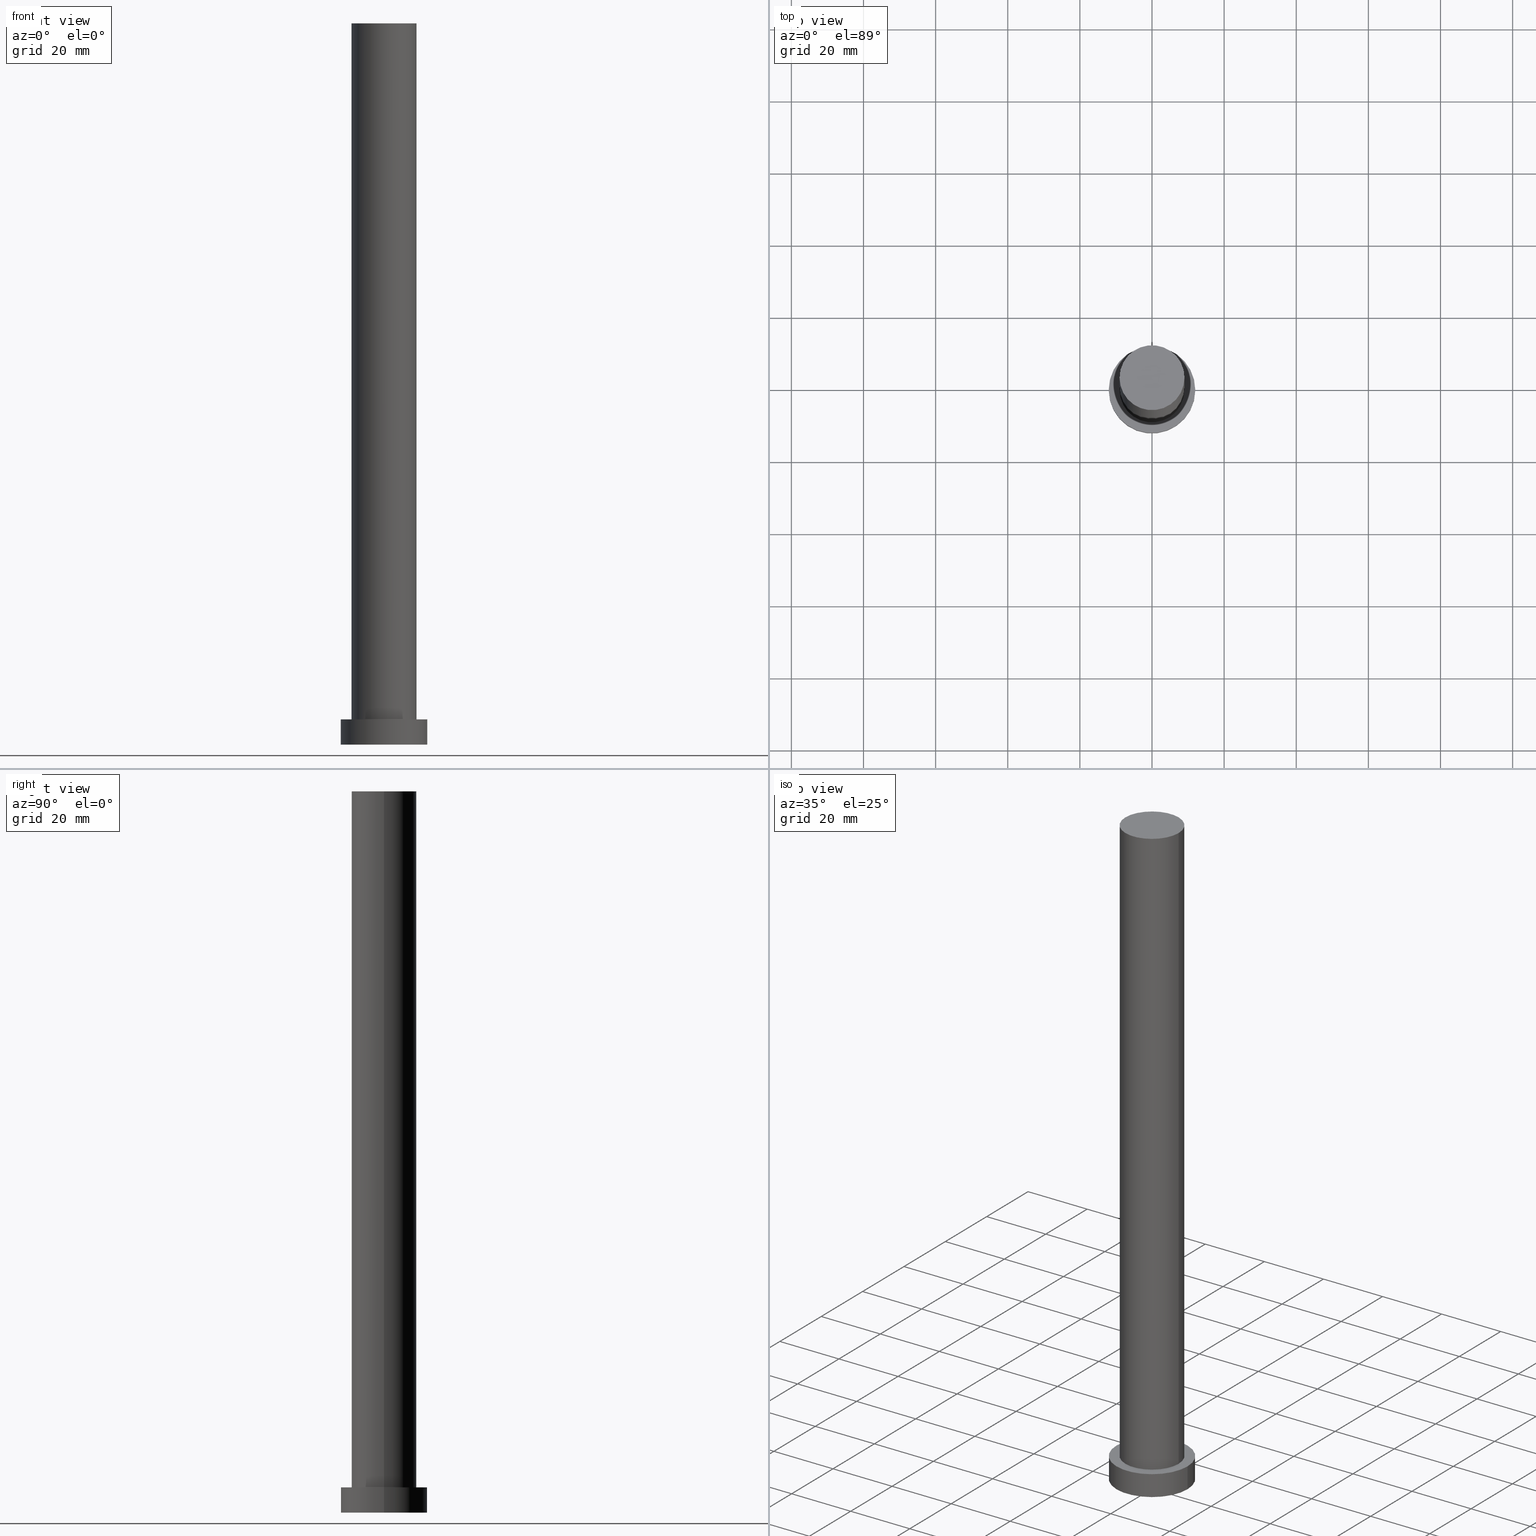
[diagram: canonical four-view strip — front | top / right | iso, engineering-drawing reading convention]
A machine part, canonical four-view strip (front | top / right | iso — engineering-drawing reading convention). The complete STEP part file that produces these views, byte-faithful:
ISO-10303-21;
HEADER;
FILE_DESCRIPTION (( 'STEP AP203' ),
    '1' );
FILE_NAME ('eaf8.STEP',
    '2023-02-12T10:38:04',
    ( '' ),
    ( '' ),
    'SwSTEP 2.0',
    'SolidWorks 2019',
    '' );
FILE_SCHEMA (( 'CONFIG_CONTROL_DESIGN' ));
ENDSEC;

DATA;
#1 = DIRECTION ( 'NONE',  ( 1.000000000000000000, 0.000000000000000000, 0.000000000000000000 ) ) ;
#2 = EDGE_CURVE ( 'NONE', #90, #34, #212, .T. ) ;
#3 = VERTEX_POINT ( 'NONE', #85 ) ;
#4 = VECTOR ( 'NONE', #125, 1000.000000000000000 ) ;
#5 = FACE_BOUND ( 'NONE', #245, .T. ) ;
#6 = CC_DESIGN_PERSON_AND_ORGANIZATION_ASSIGNMENT ( #117, #144, ( #162 ) ) ;
#7 = CARTESIAN_POINT ( 'NONE',  ( -12.00000000000000178, 0.000000000000000000, 7.000000000000000000 ) ) ;
#8 = EDGE_CURVE ( 'NONE', #3, #243, #59, .T. ) ;
#9 = CARTESIAN_POINT ( 'NONE',  ( 0.000000000000000000, 0.000000000000000000, 0.000000000000000000 ) ) ;
#10 = LOCAL_TIME ( 11, 38, 4.000000000000000000, #32 ) ;
#11 = DIRECTION ( 'NONE',  ( 1.000000000000000000, 0.000000000000000000, -0.000000000000000000 ) ) ;
#12 = ORIENTED_EDGE ( 'NONE', *, *, #150, .T. ) ;
#13 = ADVANCED_FACE ( 'NONE', ( #5, #238 ), #216, .T. ) ;
#14 = PERSON_AND_ORGANIZATION ( #47, #176 ) ;
#15 = APPROVAL_ROLE ( '' ) ;
#16 = EDGE_LOOP ( 'NONE', ( #31, #163, #40, #51 ) ) ;
#17 = SHAPE_DEFINITION_REPRESENTATION ( #251, #180 ) ;
#18 = VERTEX_POINT ( 'NONE', #38 ) ;
#19 = VECTOR ( 'NONE', #138, 1000.000000000000000 ) ;
#20 = APPROVAL ( #255, 'NEUR�EN�' ) ;
#21 = APPROVAL_PERSON_ORGANIZATION ( #254, #20, #98 ) ;
#22 = DIRECTION ( 'NONE',  ( 1.000000000000000000, 0.000000000000000000, 0.000000000000000000 ) ) ;
#23 = DIRECTION ( 'NONE',  ( -1.000000000000000000, 0.000000000000000000, 0.000000000000000000 ) ) ;
#24 = AXIS2_PLACEMENT_3D ( 'NONE', #128, #224, #109 ) ;
#25 = CARTESIAN_POINT ( 'NONE',  ( 0.000000000000000000, 0.000000000000000000, 0.000000000000000000 ) ) ;
#26 = MECHANICAL_CONTEXT ( 'NONE', #61, 'mechanical' ) ;
#27 = DIRECTION ( 'NONE',  ( 0.000000000000000000, 0.000000000000000000, 1.000000000000000000 ) ) ;
#28 = AXIS2_PLACEMENT_3D ( 'NONE', #233, #156, #172 ) ;
#29 = PLANE ( 'NONE',  #149 ) ;
#30 = CC_DESIGN_APPROVAL ( #82, ( #121 ) ) ;
#31 = ORIENTED_EDGE ( 'NONE', *, *, #2, .F. ) ;
#32 = COORDINATED_UNIVERSAL_TIME_OFFSET ( 1, 0, .AHEAD. ) ;
#33 = CIRCLE ( 'NONE', #205, 12.00000000000000178 ) ;
#34 = VERTEX_POINT ( 'NONE', #239 ) ;
#35 = AXIS2_PLACEMENT_3D ( 'NONE', #9, #27, #201 ) ;
#36 = ORIENTED_EDGE ( 'NONE', *, *, #8, .T. ) ;
#37 = APPROVAL_DATE_TIME ( #193, #208 ) ;
#38 = CARTESIAN_POINT ( 'NONE',  ( -12.00000000000000178, 0.000000000000000000, 0.000000000000000000 ) ) ;
#39 = APPROVAL_ROLE ( '' ) ;
#40 = ORIENTED_EDGE ( 'NONE', *, *, #111, .T. ) ;
#41 = PERSON_AND_ORGANIZATION_ROLE ( 'classification_officer' ) ;
#42 = CARTESIAN_POINT ( 'NONE',  ( 9.000000000000001776, 1.102182119232617911E-15, 200.0000000000000000 ) ) ;
#43 = CIRCLE ( 'NONE', #66, 9.000000000000001776 ) ;
#44 = CARTESIAN_POINT ( 'NONE',  ( 0.000000000000000000, 0.000000000000000000, 200.0000000000000000 ) ) ;
#45 = DIRECTION ( 'NONE',  ( 1.000000000000000000, 0.000000000000000000, 0.000000000000000000 ) ) ;
#46 = FACE_OUTER_BOUND ( 'NONE', #73, .T. ) ;
#47 = PERSON ( 'NEUR�EN�', 'NEUR�EN�', 'NEUR�EN�', ('NEUR�EN�'), ('NEUR�EN�'), ('NEUR�EN�') ) ;
#48 = CARTESIAN_POINT ( 'NONE',  ( 0.000000000000000000, 0.000000000000000000, 200.0000000000000000 ) ) ;
#49 = EDGE_CURVE ( 'NONE', #3, #77, #83, .T. ) ;
#50 = CARTESIAN_POINT ( 'NONE',  ( 0.000000000000000000, 0.000000000000000000, 200.0000000000000000 ) ) ;
#51 = ORIENTED_EDGE ( 'NONE', *, *, #127, .F. ) ;
#52 = PERSON_AND_ORGANIZATION ( #47, #176 ) ;
#53 = DATE_AND_TIME ( #134, #79 ) ;
#54 = CLOSED_SHELL ( 'NONE', ( #146, #242, #67, #13, #221, #91, #196 ) ) ;
#55 = ORIENTED_EDGE ( 'NONE', *, *, #49, .T. ) ;
#56 = DATE_AND_TIME ( #213, #231 ) ;
#57 = CALENDAR_DATE ( 2023, 12, 2 ) ;
#58 = DIRECTION ( 'NONE',  ( 0.000000000000000000, 0.000000000000000000, 1.000000000000000000 ) ) ;
#59 = CIRCLE ( 'NONE', #103, 12.00000000000000178 ) ;
#60 = AXIS2_PLACEMENT_3D ( 'NONE', #140, #100, #96 ) ;
#61 = APPLICATION_CONTEXT ( 'configuration controlled 3d designs of mechanical parts and assemblies' ) ;
#62 = CARTESIAN_POINT ( 'NONE',  ( 9.000000000000001776, 1.102182119232617911E-15, 200.0000000000000000 ) ) ;
#63 = APPROVAL_PERSON_ORGANIZATION ( #248, #208, #15 ) ;
#64 = DIRECTION ( 'NONE',  ( 0.000000000000000000, 0.000000000000000000, 1.000000000000000000 ) ) ;
#65 = VERTEX_POINT ( 'NONE', #116 ) ;
#66 = AXIS2_PLACEMENT_3D ( 'NONE', #48, #108, #141 ) ;
#67 = ADVANCED_FACE ( 'NONE', ( #135 ), #177, .T. ) ;
#68 = DIRECTION ( 'NONE',  ( 1.000000000000000000, 0.000000000000000000, -0.000000000000000000 ) ) ;
#69 = FACE_OUTER_BOUND ( 'NONE', #16, .T. ) ;
#70 = ORIENTED_EDGE ( 'NONE', *, *, #2, .T. ) ;
#71 = DIRECTION ( 'NONE',  ( -1.000000000000000000, 0.000000000000000000, 0.000000000000000000 ) ) ;
#72 = EDGE_CURVE ( 'NONE', #65, #206, #153, .T. ) ;
#73 = EDGE_LOOP ( 'NONE', ( #166, #70 ) ) ;
#74 = CYLINDRICAL_SURFACE ( 'NONE', #124, 12.00000000000000178 ) ;
#75 = ORIENTED_EDGE ( 'NONE', *, *, #127, .T. ) ;
#76 = COORDINATED_UNIVERSAL_TIME_OFFSET ( 1, 0, .AHEAD. ) ;
#77 = VERTEX_POINT ( 'NONE', #155 ) ;
#78 = DATE_AND_TIME ( #57, #173 ) ;
#79 = LOCAL_TIME ( 11, 38, 4.000000000000000000, #76 ) ;
#80 = CARTESIAN_POINT ( 'NONE',  ( 0.000000000000000000, 0.000000000000000000, 7.000000000000000000 ) ) ;
#81 = EDGE_CURVE ( 'NONE', #243, #3, #33, .T. ) ;
#82 = APPROVAL ( #167, 'NEUR�EN�' ) ;
#83 = LINE ( 'NONE', #157, #192 ) ;
#84 = AXIS2_PLACEMENT_3D ( 'NONE', #120, #198, #23 ) ;
#85 = CARTESIAN_POINT ( 'NONE',  ( 12.00000000000000178, 1.469576158976824144E-15, 7.000000000000000000 ) ) ;
#86 = CARTESIAN_POINT ( 'NONE',  ( 0.000000000000000000, 0.000000000000000000, 7.000000000000000000 ) ) ;
#87 =( NAMED_UNIT ( * ) SI_UNIT ( $, .STERADIAN. ) SOLID_ANGLE_UNIT ( ) );
#88 = VECTOR ( 'NONE', #126, 1000.000000000000000 ) ;
#89 =( LENGTH_UNIT ( ) NAMED_UNIT ( * ) SI_UNIT ( .MILLI., .METRE. ) );
#90 = VERTEX_POINT ( 'NONE', #42 ) ;
#91 = ADVANCED_FACE ( 'NONE', ( #123 ), #104, .T. ) ;
#92 = CARTESIAN_POINT ( 'NONE',  ( 9.000000000000001776, 1.102182119232617911E-15, 7.000000000000000000 ) ) ;
#93 = CIRCLE ( 'NONE', #35, 12.00000000000000178 ) ;
#94 = APPROVAL_DATE_TIME ( #207, #82 ) ;
#95 = ORIENTED_EDGE ( 'NONE', *, *, #150, .F. ) ;
#96 = DIRECTION ( 'NONE',  ( 1.000000000000000000, 0.000000000000000000, -0.000000000000000000 ) ) ;
#97 = CC_DESIGN_APPROVAL ( #20, ( #162 ) ) ;
#98 = APPROVAL_ROLE ( '' ) ;
#99 = CC_DESIGN_PERSON_AND_ORGANIZATION_ASSIGNMENT ( #222, #174, ( #202 ) ) ;
#100 = DIRECTION ( 'NONE',  ( 0.000000000000000000, 0.000000000000000000, 1.000000000000000000 ) ) ;
#101 = CIRCLE ( 'NONE', #24, 12.00000000000000178 ) ;
#102 = CARTESIAN_POINT ( 'NONE',  ( -9.000000000000001776, 0.000000000000000000, 200.0000000000000000 ) ) ;
#103 = AXIS2_PLACEMENT_3D ( 'NONE', #86, #219, #118 ) ;
#104 = CYLINDRICAL_SURFACE ( 'NONE', #84, 9.000000000000001776 ) ;
#105 = DIRECTION ( 'NONE',  ( 0.000000000000000000, 0.000000000000000000, 1.000000000000000000 ) ) ;
#106 = CC_DESIGN_PERSON_AND_ORGANIZATION_ASSIGNMENT ( #194, #232, ( #121 ) ) ;
#107 = DESIGN_CONTEXT ( 'detailed design', #182, 'design' ) ;
#108 = DIRECTION ( 'NONE',  ( 0.000000000000000000, 0.000000000000000000, 1.000000000000000000 ) ) ;
#109 = DIRECTION ( 'NONE',  ( 1.000000000000000000, 0.000000000000000000, 0.000000000000000000 ) ) ;
#110 = LOCAL_TIME ( 11, 38, 4.000000000000000000, #190 ) ;
#111 = EDGE_CURVE ( 'NONE', #206, #65, #130, .T. ) ;
#112 = DIRECTION ( 'NONE',  ( -0.000000000000000000, -0.000000000000000000, -1.000000000000000000 ) ) ;
#113 = ORIENTED_EDGE ( 'NONE', *, *, #81, .T. ) ;
#114 = EDGE_CURVE ( 'NONE', #90, #206, #236, .T. ) ;
#115 = SECURITY_CLASSIFICATION_LEVEL ( 'unclassified' ) ;
#116 = CARTESIAN_POINT ( 'NONE',  ( -9.000000000000001776, 0.000000000000000000, 7.000000000000000000 ) ) ;
#117 = PERSON_AND_ORGANIZATION ( #47, #176 ) ;
#118 = DIRECTION ( 'NONE',  ( 1.000000000000000000, 0.000000000000000000, 0.000000000000000000 ) ) ;
#119 = COORDINATED_UNIVERSAL_TIME_OFFSET ( 1, 0, .AHEAD. ) ;
#120 = CARTESIAN_POINT ( 'NONE',  ( 0.000000000000000000, 0.000000000000000000, 200.0000000000000000 ) ) ;
#121 = PRODUCT_DEFINITION_FORMATION_WITH_SPECIFIED_SOURCE ( 'LIBOVOLN�', '', #202, .NOT_KNOWN. ) ;
#122 = DIRECTION ( 'NONE',  ( 0.000000000000000000, 0.000000000000000000, 1.000000000000000000 ) ) ;
#123 = FACE_OUTER_BOUND ( 'NONE', #249, .T. ) ;
#124 = AXIS2_PLACEMENT_3D ( 'NONE', #160, #112, #71 ) ;
#125 = DIRECTION ( 'NONE',  ( -0.000000000000000000, -0.000000000000000000, -1.000000000000000000 ) ) ;
#126 = DIRECTION ( 'NONE',  ( -0.000000000000000000, -0.000000000000000000, -1.000000000000000000 ) ) ;
#127 = EDGE_CURVE ( 'NONE', #34, #65, #197, .T. ) ;
#128 = CARTESIAN_POINT ( 'NONE',  ( 0.000000000000000000, 0.000000000000000000, 0.000000000000000000 ) ) ;
#129 = PERSON_AND_ORGANIZATION_ROLE ( 'design_supplier' ) ;
#130 = CIRCLE ( 'NONE', #235, 9.000000000000001776 ) ;
#131 = DATE_TIME_ROLE ( 'classification_date' ) ;
#132 = ORIENTED_EDGE ( 'NONE', *, *, #81, .F. ) ;
#133 = CC_DESIGN_APPROVAL ( #208, ( #253 ) ) ;
#134 = CALENDAR_DATE ( 2023, 12, 2 ) ;
#135 = FACE_OUTER_BOUND ( 'NONE', #191, .T. ) ;
#136 = UNCERTAINTY_MEASURE_WITH_UNIT (LENGTH_MEASURE( 1.000000000000000082E-05 ), #89, 'distance_accuracy_value', 'NONE');
#137 = ORIENTED_EDGE ( 'NONE', *, *, #111, .F. ) ;
#138 = DIRECTION ( 'NONE',  ( -0.000000000000000000, -0.000000000000000000, -1.000000000000000000 ) ) ;
#139 = DIRECTION ( 'NONE',  ( 0.000000000000000000, 0.000000000000000000, 1.000000000000000000 ) ) ;
#140 = CARTESIAN_POINT ( 'NONE',  ( 0.000000000000000000, 0.000000000000000000, 7.000000000000000000 ) ) ;
#141 = DIRECTION ( 'NONE',  ( 1.000000000000000000, 0.000000000000000000, 0.000000000000000000 ) ) ;
#142 = DIRECTION ( 'NONE',  ( 0.000000000000000000, 0.000000000000000000, 1.000000000000000000 ) ) ;
#143 = ORIENTED_EDGE ( 'NONE', *, *, #175, .T. ) ;
#144 = PERSON_AND_ORGANIZATION_ROLE ( 'creator' ) ;
#145 = ORIENTED_EDGE ( 'NONE', *, *, #49, .F. ) ;
#146 = ADVANCED_FACE ( 'NONE', ( #69 ), #164, .T. ) ;
#147 = PERSON_AND_ORGANIZATION ( #47, #176 ) ;
#148 = ORIENTED_EDGE ( 'NONE', *, *, #8, .F. ) ;
#149 = AXIS2_PLACEMENT_3D ( 'NONE', #241, #246, #68 ) ;
#150 = EDGE_CURVE ( 'NONE', #77, #18, #93, .T. ) ;
#151 = DIRECTION ( 'NONE',  ( 1.000000000000000000, 0.000000000000000000, 0.000000000000000000 ) ) ;
#152 = APPROVAL_STATUS ( 'not_yet_approved' ) ;
#153 = CIRCLE ( 'NONE', #244, 9.000000000000001776 ) ;
#154 = EDGE_CURVE ( 'NONE', #34, #90, #43, .T. ) ;
#155 = CARTESIAN_POINT ( 'NONE',  ( 12.00000000000000178, 1.469576158976824144E-15, 0.000000000000000000 ) ) ;
#156 = DIRECTION ( 'NONE',  ( -0.000000000000000000, -0.000000000000000000, -1.000000000000000000 ) ) ;
#157 = CARTESIAN_POINT ( 'NONE',  ( 12.00000000000000178, 1.469576158976824144E-15, 7.000000000000000000 ) ) ;
#158 = DIRECTION ( 'NONE',  ( -0.000000000000000000, -0.000000000000000000, -1.000000000000000000 ) ) ;
#159 = APPLICATION_PROTOCOL_DEFINITION ( 'international standard', 'config_control_design', 1994, #61 ) ;
#160 = CARTESIAN_POINT ( 'NONE',  ( 0.000000000000000000, 0.000000000000000000, 7.000000000000000000 ) ) ;
#161 = AXIS2_PLACEMENT_3D ( 'NONE', #25, #105, #184 ) ;
#162 = PRODUCT_DEFINITION ( 'NEZN�M�', '', #121, #107 ) ;
#163 = ORIENTED_EDGE ( 'NONE', *, *, #114, .T. ) ;
#164 = CYLINDRICAL_SURFACE ( 'NONE', #214, 9.000000000000001776 ) ;
#165 = CARTESIAN_POINT ( 'NONE',  ( -12.00000000000000178, 0.000000000000000000, 7.000000000000000000 ) ) ;
#166 = ORIENTED_EDGE ( 'NONE', *, *, #154, .T. ) ;
#167 = APPROVAL_STATUS ( 'not_yet_approved' ) ;
#168 = ORIENTED_EDGE ( 'NONE', *, *, #72, .T. ) ;
#169 = PRODUCT_RELATED_PRODUCT_CATEGORY ( 'detail', '', ( #202 ) ) ;
#170 = MANIFOLD_SOLID_BREP ( 'P�idat vysunut�m3', #54 ) ;
#171 = COORDINATED_UNIVERSAL_TIME_OFFSET ( 1, 0, .AHEAD. ) ;
#172 = DIRECTION ( 'NONE',  ( -1.000000000000000000, 0.000000000000000000, 0.000000000000000000 ) ) ;
#173 = LOCAL_TIME ( 11, 38, 4.000000000000000000, #119 ) ;
#174 = PERSON_AND_ORGANIZATION_ROLE ( 'design_owner' ) ;
#175 = EDGE_CURVE ( 'NONE', #243, #18, #187, .T. ) ;
#176 = ORGANIZATION ( 'NEUR�EN�', 'NEUR�EN�', '' ) ;
#177 = CYLINDRICAL_SURFACE ( 'NONE', #28, 12.00000000000000178 ) ;
#178 = CC_DESIGN_SECURITY_CLASSIFICATION ( #253, ( #121 ) ) ;
#179 = EDGE_LOOP ( 'NONE', ( #113, #36 ) ) ;
#180 = ADVANCED_BREP_SHAPE_REPRESENTATION ( 'eaf8', ( #170, #161 ), #223 ) ;
#181 = CC_DESIGN_PERSON_AND_ORGANIZATION_ASSIGNMENT ( #14, #129, ( #121 ) ) ;
#182 = APPLICATION_CONTEXT ( 'configuration controlled 3d designs of mechanical parts and assemblies' ) ;
#183 = EDGE_LOOP ( 'NONE', ( #227, #95 ) ) ;
#184 = DIRECTION ( 'NONE',  ( 1.000000000000000000, 0.000000000000000000, 0.000000000000000000 ) ) ;
#185 = DIRECTION ( 'NONE',  ( -0.000000000000000000, -0.000000000000000000, -1.000000000000000000 ) ) ;
#186 = FACE_OUTER_BOUND ( 'NONE', #220, .T. ) ;
#187 = LINE ( 'NONE', #7, #88 ) ;
#188 = CC_DESIGN_PERSON_AND_ORGANIZATION_ASSIGNMENT ( #52, #41, ( #253 ) ) ;
#189 = APPLICATION_PROTOCOL_DEFINITION ( 'international standard', 'config_control_design', 1994, #182 ) ;
#190 = COORDINATED_UNIVERSAL_TIME_OFFSET ( 1, 0, .AHEAD. ) ;
#191 = EDGE_LOOP ( 'NONE', ( #145, #132, #143, #203 ) ) ;
#192 = VECTOR ( 'NONE', #158, 1000.000000000000000 ) ;
#193 = DATE_AND_TIME ( #234, #10 ) ;
#194 = PERSON_AND_ORGANIZATION ( #47, #176 ) ;
#195 = CARTESIAN_POINT ( 'NONE',  ( 0.000000000000000000, 0.000000000000000000, 7.000000000000000000 ) ) ;
#196 = ADVANCED_FACE ( 'NONE', ( #46 ), #200, .T. ) ;
#197 = LINE ( 'NONE', #102, #4 ) ;
#198 = DIRECTION ( 'NONE',  ( -0.000000000000000000, -0.000000000000000000, -1.000000000000000000 ) ) ;
#199 = FACE_OUTER_BOUND ( 'NONE', #183, .T. ) ;
#200 = PLANE ( 'NONE',  #247 ) ;
#201 = DIRECTION ( 'NONE',  ( 1.000000000000000000, 0.000000000000000000, 0.000000000000000000 ) ) ;
#202 = PRODUCT ( 'eaf8', 'eaf8', '', ( #26 ) ) ;
#203 = ORIENTED_EDGE ( 'NONE', *, *, #237, .T. ) ;
#204 = APPROVAL_DATE_TIME ( #56, #20 ) ;
#205 = AXIS2_PLACEMENT_3D ( 'NONE', #80, #64, #151 ) ;
#206 = VERTEX_POINT ( 'NONE', #92 ) ;
#207 = DATE_AND_TIME ( #230, #110 ) ;
#208 = APPROVAL ( #152, 'NEUR�EN�' ) ;
#209 = ORIENTED_EDGE ( 'NONE', *, *, #72, .F. ) ;
#210 = DATE_TIME_ROLE ( 'creation_date' ) ;
#211 = ORIENTED_EDGE ( 'NONE', *, *, #175, .F. ) ;
#212 = CIRCLE ( 'NONE', #215, 9.000000000000001776 ) ;
#213 = CALENDAR_DATE ( 2023, 12, 2 ) ;
#214 = AXIS2_PLACEMENT_3D ( 'NONE', #50, #185, #225 ) ;
#215 = AXIS2_PLACEMENT_3D ( 'NONE', #44, #139, #45 ) ;
#216 = PLANE ( 'NONE',  #60 ) ;
#217 = CC_DESIGN_DATE_AND_TIME_ASSIGNMENT ( #53, #210, ( #162 ) ) ;
#218 = APPROVAL_PERSON_ORGANIZATION ( #147, #82, #39 ) ;
#219 = DIRECTION ( 'NONE',  ( 0.000000000000000000, 0.000000000000000000, 1.000000000000000000 ) ) ;
#220 = EDGE_LOOP ( 'NONE', ( #148, #55, #12, #211 ) ) ;
#221 = ADVANCED_FACE ( 'NONE', ( #199 ), #29, .F. ) ;
#222 = PERSON_AND_ORGANIZATION ( #47, #176 ) ;
#223 =( GEOMETRIC_REPRESENTATION_CONTEXT ( 3 ) GLOBAL_UNCERTAINTY_ASSIGNED_CONTEXT ( ( #136 ) ) GLOBAL_UNIT_ASSIGNED_CONTEXT ( ( #89, #228, #87 ) ) REPRESENTATION_CONTEXT ( 'NONE', 'WORKASPACE' ) );
#224 = DIRECTION ( 'NONE',  ( 0.000000000000000000, 0.000000000000000000, 1.000000000000000000 ) ) ;
#225 = DIRECTION ( 'NONE',  ( -1.000000000000000000, 0.000000000000000000, 0.000000000000000000 ) ) ;
#226 = CC_DESIGN_DATE_AND_TIME_ASSIGNMENT ( #78, #131, ( #253 ) ) ;
#227 = ORIENTED_EDGE ( 'NONE', *, *, #237, .F. ) ;
#228 =( NAMED_UNIT ( * ) PLANE_ANGLE_UNIT ( ) SI_UNIT ( $, .RADIAN. ) );
#229 = ORIENTED_EDGE ( 'NONE', *, *, #114, .F. ) ;
#230 = CALENDAR_DATE ( 2023, 12, 2 ) ;
#231 = LOCAL_TIME ( 11, 38, 4.000000000000000000, #171 ) ;
#232 = PERSON_AND_ORGANIZATION_ROLE ( 'creator' ) ;
#233 = CARTESIAN_POINT ( 'NONE',  ( 0.000000000000000000, 0.000000000000000000, 7.000000000000000000 ) ) ;
#234 = CALENDAR_DATE ( 2023, 12, 2 ) ;
#235 = AXIS2_PLACEMENT_3D ( 'NONE', #195, #122, #22 ) ;
#236 = LINE ( 'NONE', #62, #19 ) ;
#237 = EDGE_CURVE ( 'NONE', #18, #77, #101, .T. ) ;
#238 = FACE_OUTER_BOUND ( 'NONE', #179, .T. ) ;
#239 = CARTESIAN_POINT ( 'NONE',  ( -9.000000000000001776, 0.000000000000000000, 200.0000000000000000 ) ) ;
#240 = CARTESIAN_POINT ( 'NONE',  ( 0.000000000000000000, 0.000000000000000000, 200.0000000000000000 ) ) ;
#241 = CARTESIAN_POINT ( 'NONE',  ( 0.000000000000000000, 0.000000000000000000, 0.000000000000000000 ) ) ;
#242 = ADVANCED_FACE ( 'NONE', ( #186 ), #74, .T. ) ;
#243 = VERTEX_POINT ( 'NONE', #165 ) ;
#244 = AXIS2_PLACEMENT_3D ( 'NONE', #252, #58, #1 ) ;
#245 = EDGE_LOOP ( 'NONE', ( #209, #137 ) ) ;
#246 = DIRECTION ( 'NONE',  ( 0.000000000000000000, 0.000000000000000000, 1.000000000000000000 ) ) ;
#247 = AXIS2_PLACEMENT_3D ( 'NONE', #240, #142, #11 ) ;
#248 = PERSON_AND_ORGANIZATION ( #47, #176 ) ;
#249 = EDGE_LOOP ( 'NONE', ( #229, #250, #75, #168 ) ) ;
#250 = ORIENTED_EDGE ( 'NONE', *, *, #154, .F. ) ;
#251 = PRODUCT_DEFINITION_SHAPE ( 'NONE', 'NONE',  #162 ) ;
#252 = CARTESIAN_POINT ( 'NONE',  ( 0.000000000000000000, 0.000000000000000000, 7.000000000000000000 ) ) ;
#253 = SECURITY_CLASSIFICATION ( '', '', #115 ) ;
#254 = PERSON_AND_ORGANIZATION ( #47, #176 ) ;
#255 = APPROVAL_STATUS ( 'not_yet_approved' ) ;
ENDSEC;
END-ISO-10303-21;
